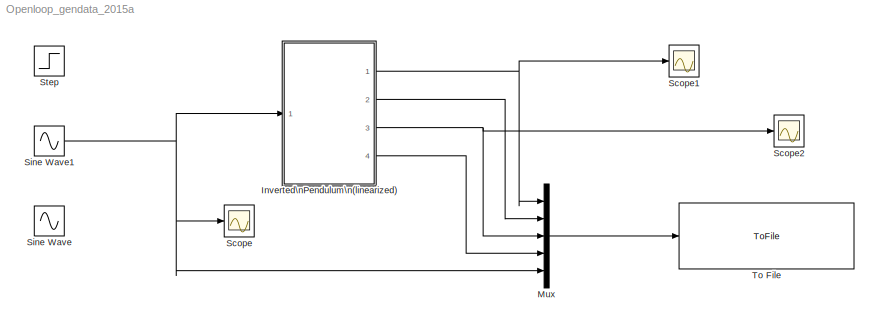
MODEL Openloop_gendata_2015a
KIND model
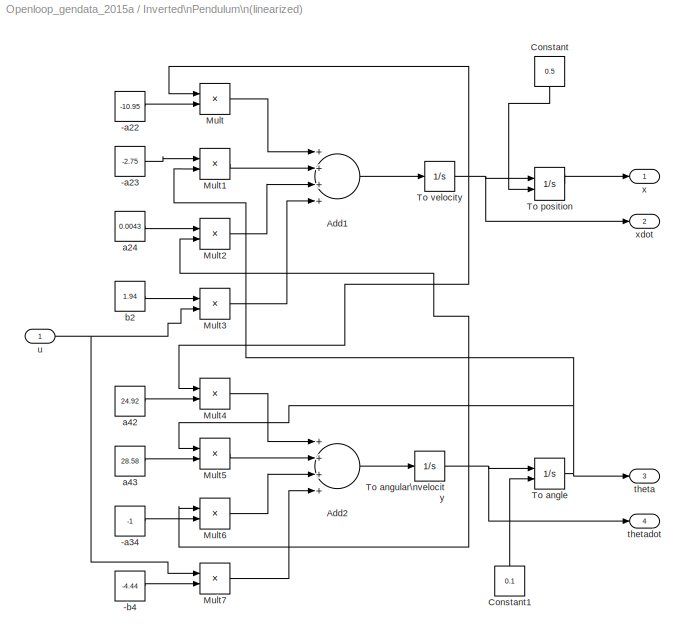
BLOCK [SubSystem] Inverted\nPendulum\n(linearized)
  Ports = [1, 4]
  RequestExecContextInheritance = off
  SID = 1
BLOCK [Constant] Inverted\nPendulum\n(linearized)/-a22
  SID = 3
  Value = -10.95
BLOCK [Constant] Inverted\nPendulum\n(linearized)/-a23
  SID = 4
  Value = -2.75
BLOCK [Constant] Inverted\nPendulum\n(linearized)/-a34
  SID = 5
  Value = -1
BLOCK [Constant] Inverted\nPendulum\n(linearized)/-b4
  SID = 6
  Value = -4.44
BLOCK [Sum] Inverted\nPendulum\n(linearized)/Add1
  InputSameDT = off
  Inputs = ++++
  OutDataTypeStr = Inherit: Inherit via internal rule
  Ports = [4, 1]
  SID = 7
  SaturateOnIntegerOverflow = off
BLOCK [Sum] Inverted\nPendulum\n(linearized)/Add2
  InputSameDT = off
  Inputs = ++++
  OutDataTypeStr = Inherit: Inherit via internal rule
  Ports = [4, 1]
  SID = 8
  SaturateOnIntegerOverflow = off
BLOCK [Constant] Inverted\nPendulum\n(linearized)/Constant
  SID = 9
  Value = 0.5
BLOCK [Constant] Inverted\nPendulum\n(linearized)/Constant1
  SID = 10
  Value = 0.1
BLOCK [Product] Inverted\nPendulum\n(linearized)/Mult
  InputSameDT = off
  Inputs = **
  OutDataTypeStr = Inherit: Inherit via internal rule
  Ports = [2, 1]
  RndMeth = Floor
  SID = 11
  SaturateOnIntegerOverflow = off
BLOCK [Product] Inverted\nPendulum\n(linearized)/Mult1
  InputSameDT = off
  Inputs = **
  OutDataTypeStr = Inherit: Inherit via internal rule
  Ports = [2, 1]
  RndMeth = Floor
  SID = 12
  SaturateOnIntegerOverflow = off
BLOCK [Product] Inverted\nPendulum\n(linearized)/Mult2
  InputSameDT = off
  Inputs = **
  OutDataTypeStr = Inherit: Inherit via internal rule
  Ports = [2, 1]
  RndMeth = Floor
  SID = 13
  SaturateOnIntegerOverflow = off
BLOCK [Product] Inverted\nPendulum\n(linearized)/Mult3
  InputSameDT = off
  Inputs = **
  OutDataTypeStr = Inherit: Inherit via internal rule
  Ports = [2, 1]
  RndMeth = Floor
  SID = 14
  SaturateOnIntegerOverflow = off
BLOCK [Product] Inverted\nPendulum\n(linearized)/Mult4
  InputSameDT = off
  Inputs = **
  OutDataTypeStr = Inherit: Inherit via internal rule
  Ports = [2, 1]
  RndMeth = Floor
  SID = 15
  SaturateOnIntegerOverflow = off
BLOCK [Product] Inverted\nPendulum\n(linearized)/Mult5
  InputSameDT = off
  Inputs = **
  OutDataTypeStr = Inherit: Inherit via internal rule
  Ports = [2, 1]
  RndMeth = Floor
  SID = 16
  SaturateOnIntegerOverflow = off
BLOCK [Product] Inverted\nPendulum\n(linearized)/Mult6
  InputSameDT = off
  Inputs = **
  OutDataTypeStr = Inherit: Inherit via internal rule
  Ports = [2, 1]
  RndMeth = Floor
  SID = 17
  SaturateOnIntegerOverflow = off
BLOCK [Product] Inverted\nPendulum\n(linearized)/Mult7
  InputSameDT = off
  Inputs = **
  OutDataTypeStr = Inherit: Inherit via internal rule
  Ports = [2, 1]
  RndMeth = Floor
  SID = 18
  SaturateOnIntegerOverflow = off
BLOCK [Integrator] Inverted\nPendulum\n(linearized)/To angle
  InitialCondition = 1.5
  InitialConditionSource = external
  Ports = [2, 1]
  SID = 19
BLOCK [Integrator] Inverted\nPendulum\n(linearized)/To angular\nvelocity
  Ports = [1, 1]
  SID = 20
BLOCK [Integrator] Inverted\nPendulum\n(linearized)/To position
  InitialCondition = 1
  InitialConditionSource = external
  Ports = [2, 1]
  SID = 21
BLOCK [Integrator] Inverted\nPendulum\n(linearized)/To velocity
  Ports = [1, 1]
  SID = 22
BLOCK [Constant] Inverted\nPendulum\n(linearized)/a24
  SID = 23
  Value = 0.0043
BLOCK [Constant] Inverted\nPendulum\n(linearized)/a42
  SID = 24
  Value = 24.92
BLOCK [Constant] Inverted\nPendulum\n(linearized)/a43
  SID = 25
  Value = 28.58
BLOCK [Constant] Inverted\nPendulum\n(linearized)/b2
  SID = 26
  Value = 1.94
BLOCK [Outport] Inverted\nPendulum\n(linearized)/theta
  IconDisplay = Port number
  Port = 3
  SID = 29
BLOCK [Outport] Inverted\nPendulum\n(linearized)/thetadot
  IconDisplay = Port number
  Port = 4
  SID = 30
BLOCK [Inport] Inverted\nPendulum\n(linearized)/u
  IconDisplay = Port number
  SID = 2
BLOCK [Outport] Inverted\nPendulum\n(linearized)/x
  IconDisplay = Port number
  SID = 27
BLOCK [Outport] Inverted\nPendulum\n(linearized)/xdot
  IconDisplay = Port number
  Port = 2
  SID = 28
BLOCK [Mux] Mux
  DisplayOption = bar
  Inputs = 5
  Ports = [5, 1]
  SID = 37
BLOCK [Scope] Scope
  DataFormat = StructureWithTime
  Decimation = 1
  Floating = off
  Grid = on
  LimitDataPoints = off
  MaxDataPoints = 5000
  NumInputPorts = 1
  Ports = [1]
  SID = 32
  SampleInput = off
  SampleTime = -1
  SaveName = ScopeData
  SaveToWorkspace = off
  ShowLegends = off
  TickLabels = OneTimeTick
  TimeRange = auto
  YMax = 1.25
  YMin = -1.25
  ZoomMode = on
BLOCK [Scope] Scope1
  DataFormat = StructureWithTime
  Decimation = 1
  Floating = off
  Grid = on
  LimitDataPoints = off
  MaxDataPoints = 5000
  NumInputPorts = 1
  Ports = [1]
  SID = 33
  SampleInput = off
  SampleTime = -1
  SaveName = ScopeData1
  SaveToWorkspace = off
  ShowLegends = off
  TickLabels = OneTimeTick
  TimeRange = auto
  YMax = 5452907512391574.00000
  YMin = -49076167611524168.00000
  ZoomMode = on
BLOCK [Scope] Scope2
  DataFormat = StructureWithTime
  Decimation = 1
  Floating = off
  Grid = on
  LimitDataPoints = off
  MaxDataPoints = 5000
  NumInputPorts = 1
  Ports = [1]
  SID = 34
  SampleInput = off
  SampleTime = -1
  SaveName = ScopeData2
  SaveToWorkspace = off
  ShowLegends = off
  TickLabels = OneTimeTick
  TimeRange = auto
  YMax = 3533560992750962700.00000
  YMin = -31802048934758674000.00000
  ZoomMode = on
BLOCK [Sin] Sine Wave
  Amplitude = 1.4370
  Bias = -1.0524
  Ports = [0, 1]
  SID = 31
  SampleTime = 0
BLOCK [Sin] Sine Wave1
  Amplitude = 0.01
  Ports = [0, 1]
  SID = 35
BLOCK [Step] Step
  SID = 38
  SampleTime = 0
  Time = 3
BLOCK [ToFile] To File
  Decimation = 2
  Filename = inv_openloop_sine.mat
  MatrixName = openloop
  Ports = [1]
  SID = 36
  SampleTime = 0.001
LINE Inverted\nPendulum\n(linearized)/-a22:1 -> Inverted\nPendulum\n(linearized)/Mult:2
LINE Inverted\nPendulum\n(linearized)/-a23:1 -> Inverted\nPendulum\n(linearized)/Mult1:1
LINE Inverted\nPendulum\n(linearized)/-a34:1 -> Inverted\nPendulum\n(linearized)/Mult6:2
LINE Inverted\nPendulum\n(linearized)/-b4:1 -> Inverted\nPendulum\n(linearized)/Mult7:2
LINE Inverted\nPendulum\n(linearized)/Add1:1 -> Inverted\nPendulum\n(linearized)/To velocity:1
LINE Inverted\nPendulum\n(linearized)/Add2:1 -> Inverted\nPendulum\n(linearized)/To angular\nvelocity:1
LINE Inverted\nPendulum\n(linearized)/Constant1:1 -> Inverted\nPendulum\n(linearized)/To angle:2
LINE Inverted\nPendulum\n(linearized)/Constant:1 -> Inverted\nPendulum\n(linearized)/To position:2
LINE Inverted\nPendulum\n(linearized)/Mult1:1 -> Inverted\nPendulum\n(linearized)/Add1:2
LINE Inverted\nPendulum\n(linearized)/Mult2:1 -> Inverted\nPendulum\n(linearized)/Add1:3
LINE Inverted\nPendulum\n(linearized)/Mult3:1 -> Inverted\nPendulum\n(linearized)/Add1:4
LINE Inverted\nPendulum\n(linearized)/Mult4:1 -> Inverted\nPendulum\n(linearized)/Add2:1
LINE Inverted\nPendulum\n(linearized)/Mult5:1 -> Inverted\nPendulum\n(linearized)/Add2:2
LINE Inverted\nPendulum\n(linearized)/Mult6:1 -> Inverted\nPendulum\n(linearized)/Add2:3
LINE Inverted\nPendulum\n(linearized)/Mult7:1 -> Inverted\nPendulum\n(linearized)/Add2:4
LINE Inverted\nPendulum\n(linearized)/Mult:1 -> Inverted\nPendulum\n(linearized)/Add1:1
NET Inverted\nPendulum\n(linearized)/To angle:1 -> Inverted\nPendulum\n(linearized)/Mult1:2, Inverted\nPendulum\n(linearized)/Mult5:1, Inverted\nPendulum\n(linearized)/theta:1
NET Inverted\nPendulum\n(linearized)/To angular\nvelocity:1 -> Inverted\nPendulum\n(linearized)/Mult2:2, Inverted\nPendulum\n(linearized)/Mult6:1, Inverted\nPendulum\n(linearized)/To angle:1, Inverted\nPendulum\n(linearized)/thetadot:1
LINE Inverted\nPendulum\n(linearized)/To position:1 -> Inverted\nPendulum\n(linearized)/x:1
NET Inverted\nPendulum\n(linearized)/To velocity:1 -> Inverted\nPendulum\n(linearized)/Mult4:1, Inverted\nPendulum\n(linearized)/Mult:1, Inverted\nPendulum\n(linearized)/To position:1, Inverted\nPendulum\n(linearized)/xdot:1
LINE Inverted\nPendulum\n(linearized)/a24:1 -> Inverted\nPendulum\n(linearized)/Mult2:1
LINE Inverted\nPendulum\n(linearized)/a42:1 -> Inverted\nPendulum\n(linearized)/Mult4:2
LINE Inverted\nPendulum\n(linearized)/a43:1 -> Inverted\nPendulum\n(linearized)/Mult5:2
LINE Inverted\nPendulum\n(linearized)/b2:1 -> Inverted\nPendulum\n(linearized)/Mult3:1
NET Inverted\nPendulum\n(linearized)/u:1 -> Inverted\nPendulum\n(linearized)/Mult3:2, Inverted\nPendulum\n(linearized)/Mult7:1
NET Inverted\nPendulum\n(linearized):1 -> Mux:1, Scope1:1
LINE Inverted\nPendulum\n(linearized):2 -> Mux:2
NET Inverted\nPendulum\n(linearized):3 -> Mux:3, Scope2:1
LINE Inverted\nPendulum\n(linearized):4 -> Mux:4
LINE Mux:1 -> To File:1
NET Sine Wave1:1 -> Inverted\nPendulum\n(linearized):1, Mux:5, Scope:1
note: NET lines group one-source signal fan-out (src -> all destinations, sorted); 1:1 wires keep LINE
